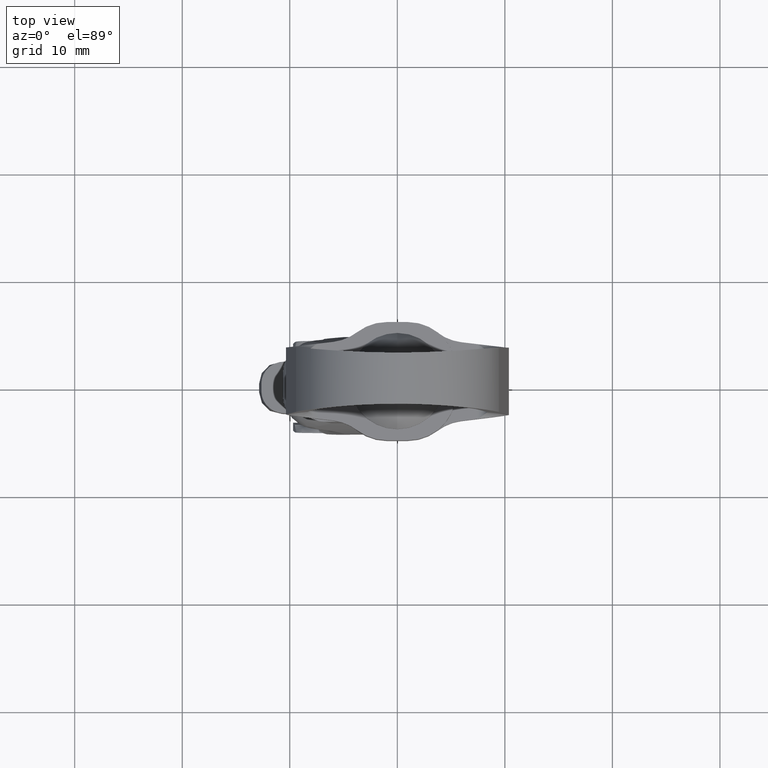
[diagram: clean part render]
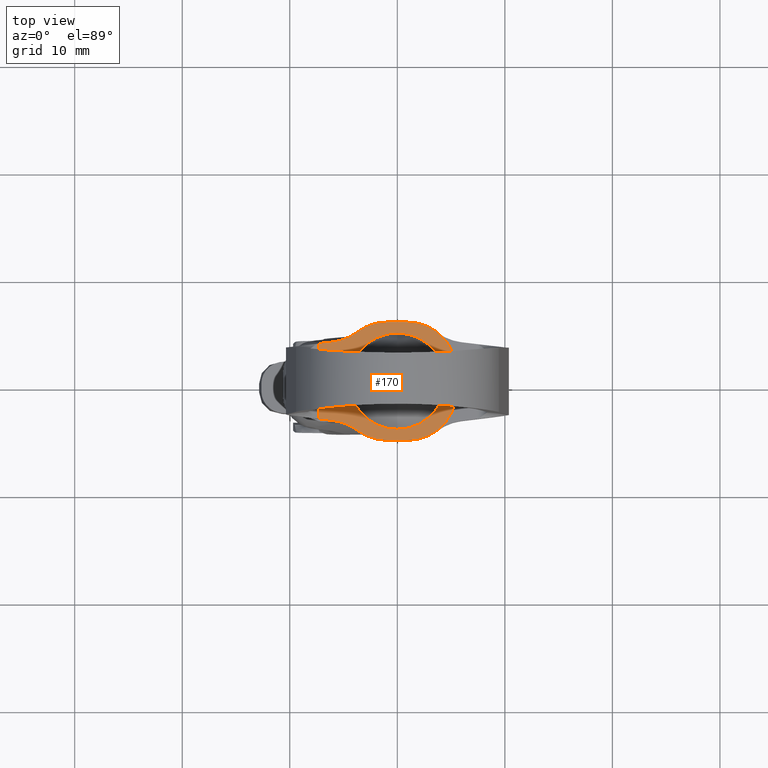
[diagram: same view with one face highlighted and labeled with its STEP entity id]
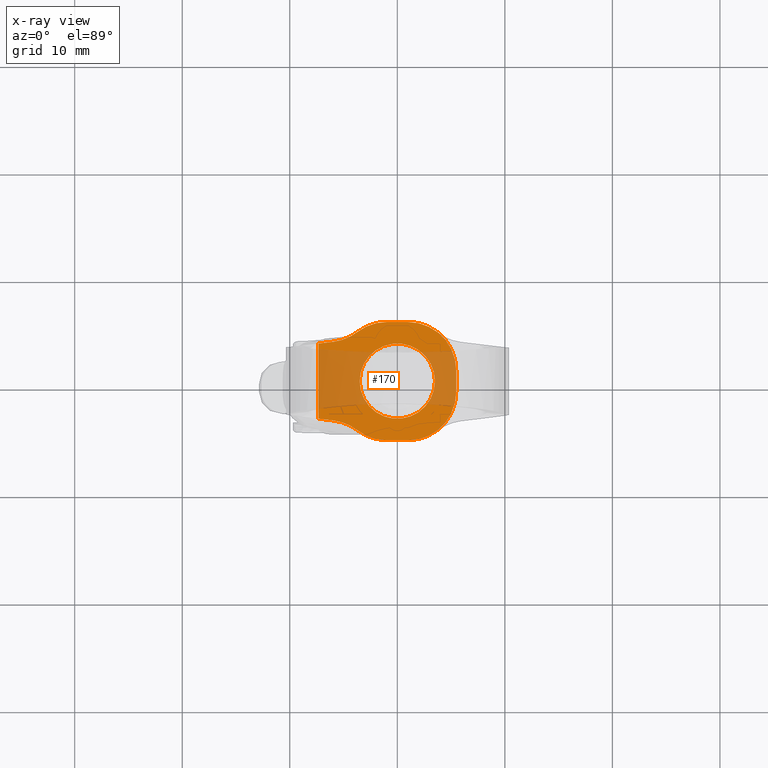
[diagram: x-ray of the same camera — body ghosted, the highlighted face saturated]
A machine part, top view. The second image highlights one B-rep face of the part: STEP entity #170.
The next image is the same camera in x-ray: the body ghosted, the highlighted face saturated — about 41% of this face is hidden behind the body in this view.
In plain terms, the highlighted planar face has unit normal (0, 0, 1).
Its self-contained STEP definition (entity closure, byte-faithful):
#170=ADVANCED_FACE('',(#561,#562),#560,.T.);
#560=PLANE('',#2572);
#561=FACE_OUTER_BOUND('',#2573,.T.);
#562=FACE_BOUND('',#2574,.T.);
#2569=CARTESIAN_POINT('',(-8.63674147391E+00,-6.60000000000E+00,4.00000000000E+00));
#2570=DIRECTION('',(0.00000000000E+00,0.00000000000E+00,1.00000000000E+00));
#2571=DIRECTION('',(1.00000000000E+00,0.00000000000E+00,-0.00000000000E+00));
#2572=AXIS2_PLACEMENT_3D('',#2569,#2570,#2571);
#2573=EDGE_LOOP('',(#5656,#5657,#5658,#5659,#5660,#5661,#5662,#5663,#5664,#5665,#5666,#5667));
#2574=EDGE_LOOP('',(#5668,#5669));
#5656=ORIENTED_EDGE('',*,*,#6706,.F.);
#5657=ORIENTED_EDGE('',*,*,#6667,.T.);
#5658=ORIENTED_EDGE('',*,*,#6708,.F.);
#5659=ORIENTED_EDGE('',*,*,#6710,.F.);
#5660=ORIENTED_EDGE('',*,*,#6711,.T.);
#5661=ORIENTED_EDGE('',*,*,#6712,.F.);
#5662=ORIENTED_EDGE('',*,*,#6713,.T.);
#5663=ORIENTED_EDGE('',*,*,#6714,.F.);
#5664=ORIENTED_EDGE('',*,*,#6631,.T.);
#5665=ORIENTED_EDGE('',*,*,#6636,.F.);
#5666=ORIENTED_EDGE('',*,*,#6639,.T.);
#5667=ORIENTED_EDGE('',*,*,#6715,.F.);
#5668=ORIENTED_EDGE('',*,*,#6716,.F.);
#5669=ORIENTED_EDGE('',*,*,#6717,.F.);
#6631=EDGE_CURVE('',#7205,#7198,#7206,.T.);
#6636=EDGE_CURVE('',#7238,#7198,#7239,.T.);
#6639=EDGE_CURVE('',#7238,#7258,#7259,.T.);
#6667=EDGE_CURVE('',#7451,#7452,#7453,.T.);
#6706=EDGE_CURVE('',#7451,#7709,#7710,.T.);
#6708=EDGE_CURVE('',#7722,#7452,#7723,.T.);
#6710=EDGE_CURVE('',#7735,#7722,#7736,.T.);
#6711=EDGE_CURVE('',#7735,#7742,#7743,.T.);
#6712=EDGE_CURVE('',#7749,#7742,#7750,.T.);
#6713=EDGE_CURVE('',#7749,#7756,#7757,.T.);
#6714=EDGE_CURVE('',#7205,#7756,#7763,.T.);
#6715=EDGE_CURVE('',#7709,#7258,#7769,.T.);
#6716=EDGE_CURVE('',#7775,#7776,#7777,.T.);
#6717=EDGE_CURVE('',#7776,#7775,#7783,.T.);
#7198=VERTEX_POINT('',#10808);
#7205=VERTEX_POINT('',#10812);
#7206=CIRCLE('',#10816,4.50000000000E+00);
#7238=VERTEX_POINT('',#10833);
#7239=LINE('',#10834,#10835);
#7258=VERTEX_POINT('',#10844);
#7259=CIRCLE('',#10848,4.50000000000E+00);
#7451=VERTEX_POINT('',#11081);
#7452=VERTEX_POINT('',#11082);
#7453=LINE('',#11083,#11084);
#7709=VERTEX_POINT('',#11344);
#7710=LINE('',#11345,#11346);
#7722=VERTEX_POINT('',#11351);
#7723=LINE('',#11352,#11353);
#7735=VERTEX_POINT('',#11358);
#7736=CIRCLE('',#11362,4.50000000000E+00);
#7742=VERTEX_POINT('',#11363);
#7743=CIRCLE('',#11367,4.50000000000E+00);
#7749=VERTEX_POINT('',#11368);
#7750=LINE('',#11369,#11370);
#7756=VERTEX_POINT('',#11372);
#7757=CIRCLE('',#11376,4.50000000000E+00);
#7763=LINE('',#11377,#11378);
#7769=CIRCLE('',#11383,4.50000000000E+00);
#7775=VERTEX_POINT('',#11384);
#7776=VERTEX_POINT('',#11385);
#7777=CIRCLE('',#11389,3.50000000000E+00);
#7783=CIRCLE('',#11393,3.50000000000E+00);
#10808=CARTESIAN_POINT('',(9.79361281561E-01,5.50000000000E+00,4.00000000000E+00));
#10812=CARTESIAN_POINT('',(5.47936128156E+00,1.00000000000E+00,4.00000000000E+00));
#10813=CARTESIAN_POINT('',(9.79361281561E-01,1.00000000000E+00,4.00000000000E+00));
#10814=DIRECTION('',(0.00000000000E+00,0.00000000000E+00,1.00000000000E+00));
#10815=DIRECTION('',(-1.00000000000E+00,-0.00000000000E+00,0.00000000000E+00));
#10816=AXIS2_PLACEMENT_3D('',#10813,#10814,#10815);
#10833=CARTESIAN_POINT('',(-9.79361281562E-01,5.50000000000E+00,4.00000000000E+00));
#10834=CARTESIAN_POINT('',(-9.79361281562E-01,5.50000000000E+00,4.00000000000E+00));
#10835=VECTOR('',#10836,1.95872256312E+00);
#10836=DIRECTION('',(1.00000000000E+00,0.00000000000E+00,0.00000000000E+00));
#10844=CARTESIAN_POINT('',(-3.72580410510E+00,4.56469519273E+00,4.00000000000E+00));
#10845=CARTESIAN_POINT('',(-9.79361281562E-01,1.00000000000E+00,4.00000000000E+00));
#10846=DIRECTION('',(0.00000000000E+00,0.00000000000E+00,1.00000000000E+00));
#10847=DIRECTION('',(-1.00000000000E+00,-0.00000000000E+00,0.00000000000E+00));
#10848=AXIS2_PLACEMENT_3D('',#10845,#10846,#10847);
#11081=CARTESIAN_POINT('',(-7.35345940523E+00,3.49167185477E+00,4.00000000000E+00));
#11082=CARTESIAN_POINT('',(-7.35345940523E+00,-3.49167185477E+00,4.00000000000E+00));
#11083=CARTESIAN_POINT('',(-7.35345940523E+00,3.49167185477E+00,4.00000000000E+00));
#11084=VECTOR('',#11085,6.98334370954E+00);
#11085=DIRECTION('',(0.00000000000E+00,-1.00000000000E+00,0.00000000000E+00));
#11344=CARTESIAN_POINT('',(-5.93706074192E+00,3.66132864175E+00,4.00000000000E+00));
#11345=CARTESIAN_POINT('',(-7.35345940523E+00,3.49167185477E+00,4.00000000000E+00));
#11346=VECTOR('',#11347,1.42652325560E+00);
#11347=DIRECTION('',(9.92902609712E-01,1.18930263713E-01,0.00000000000E+00));
#11351=CARTESIAN_POINT('',(-5.93706074193E+00,-3.66132864175E+00,4.00000000000E+00));
#11352=CARTESIAN_POINT('',(-5.93706074193E+00,-3.66132864175E+00,4.00000000000E+00));
#11353=VECTOR('',#11354,1.42652325560E+00);
#11354=DIRECTION('',(-9.92902609712E-01,1.18930263713E-01,0.00000000000E+00));
#11358=CARTESIAN_POINT('',(-3.72580410510E+00,-4.56469519273E+00,4.00000000000E+00));
#11359=CARTESIAN_POINT('',(-6.47224692863E+00,-8.12939038545E+00,4.00000000000E+00));
#11360=DIRECTION('',(0.00000000000E+00,0.00000000000E+00,1.00000000000E+00));
#11361=DIRECTION('',(-1.00000000000E+00,-0.00000000000E+00,0.00000000000E+00));
#11362=AXIS2_PLACEMENT_3D('',#11359,#11360,#11361);
#11363=CARTESIAN_POINT('',(-9.79361281562E-01,-5.50000000000E+00,4.00000000000E+00));
#11364=CARTESIAN_POINT('',(-9.79361281562E-01,-1.00000000000E+00,4.00000000000E+00));
#11365=DIRECTION('',(0.00000000000E+00,0.00000000000E+00,1.00000000000E+00));
#11366=DIRECTION('',(-1.00000000000E+00,-0.00000000000E+00,0.00000000000E+00));
#11367=AXIS2_PLACEMENT_3D('',#11364,#11365,#11366);
#11368=CARTESIAN_POINT('',(9.79361281561E-01,-5.50000000000E+00,4.00000000000E+00));
#11369=CARTESIAN_POINT('',(9.79361281561E-01,-5.50000000000E+00,4.00000000000E+00));
#11370=VECTOR('',#11371,1.95872256312E+00);
#11371=DIRECTION('',(-1.00000000000E+00,0.00000000000E+00,0.00000000000E+00));
#11372=CARTESIAN_POINT('',(5.47936128156E+00,-1.00000000000E+00,4.00000000000E+00));
#11373=CARTESIAN_POINT('',(9.79361281561E-01,-1.00000000000E+00,4.00000000000E+00));
#11374=DIRECTION('',(0.00000000000E+00,0.00000000000E+00,1.00000000000E+00));
#11375=DIRECTION('',(-1.00000000000E+00,-0.00000000000E+00,0.00000000000E+00));
#11376=AXIS2_PLACEMENT_3D('',#11373,#11374,#11375);
#11377=CARTESIAN_POINT('',(5.47936128156E+00,1.00000000000E+00,4.00000000000E+00));
#11378=VECTOR('',#11379,2.00000000000E+00);
#11379=DIRECTION('',(0.00000000000E+00,-1.00000000000E+00,0.00000000000E+00));
#11380=CARTESIAN_POINT('',(-6.47224692863E+00,8.12939038545E+00,4.00000000000E+00));
#11381=DIRECTION('',(0.00000000000E+00,0.00000000000E+00,1.00000000000E+00));
#11382=DIRECTION('',(-1.00000000000E+00,-0.00000000000E+00,0.00000000000E+00));
#11383=AXIS2_PLACEMENT_3D('',#11380,#11381,#11382);
#11384=CARTESIAN_POINT('',(-3.50000000000E+00,1.48029736617E-16,4.00000000000E+00));
#11385=CARTESIAN_POINT('',(3.50000000000E+00,0.00000000000E+00,4.00000000000E+00));
#11386=CARTESIAN_POINT('',(0.00000000000E+00,0.00000000000E+00,4.00000000000E+00));
#11387=DIRECTION('',(0.00000000000E+00,0.00000000000E+00,1.00000000000E+00));
#11388=DIRECTION('',(1.00000000000E+00,-1.22460635382E-16,0.00000000000E+00));
#11389=AXIS2_PLACEMENT_3D('',#11386,#11387,#11388);
#11390=CARTESIAN_POINT('',(0.00000000000E+00,0.00000000000E+00,4.00000000000E+00));
#11391=DIRECTION('',(0.00000000000E+00,0.00000000000E+00,1.00000000000E+00));
#11392=DIRECTION('',(1.00000000000E+00,-1.22460635382E-16,0.00000000000E+00));
#11393=AXIS2_PLACEMENT_3D('',#11390,#11391,#11392);